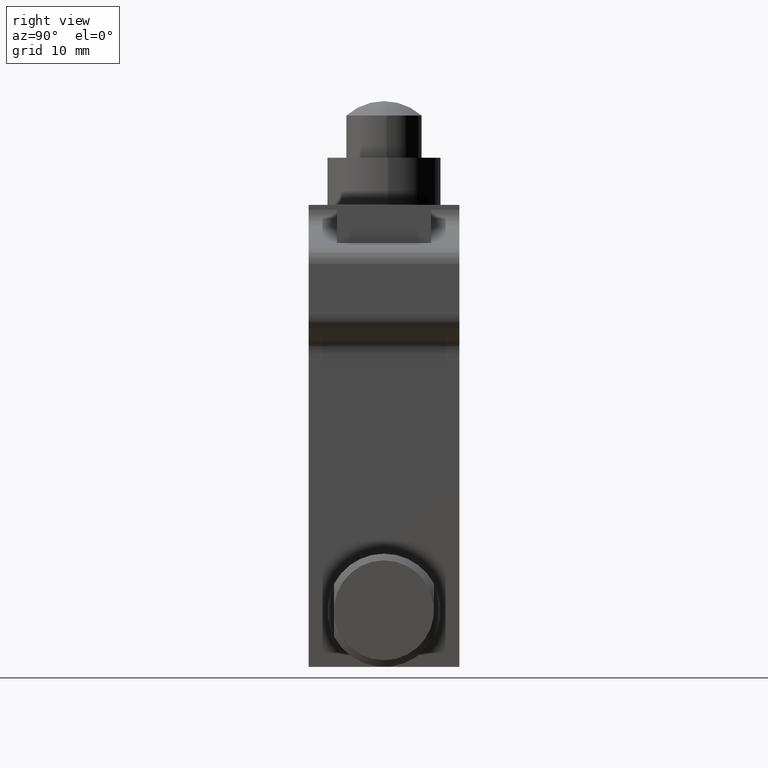
[diagram: clean part render]
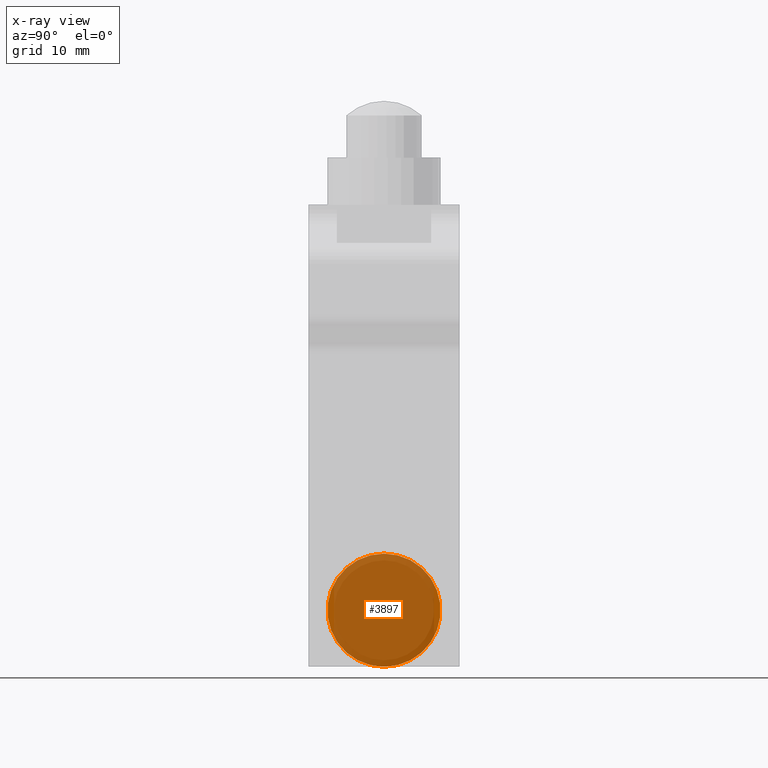
[diagram: x-ray — body ghosted, one internal face saturated and labeled with its STEP entity id]
A machine part, right view, then the same camera in x-ray: the body is ghosted and one INTERNAL B-rep face — a face not visible from any outside direction — is saturated and labeled: STEP entity #3897.
In plain terms, the highlighted planar face has unit normal (-1, -0, -0).
Its self-contained STEP definition (entity closure, byte-faithful):
#592 = CARTESIAN_POINT ( 'NONE',  ( 0.5905511811023620439, -0.3149606299212598381, -1.102362204724409711 ) ) ;
#825 = DIRECTION ( 'NONE',  ( -1.000000000000000000, -2.894103037646719272E-49, -4.120410279835029849E-32 ) ) ;
#915 = EDGE_LOOP ( 'NONE', ( #7029, #1708 ) ) ;
#1159 = CARTESIAN_POINT ( 'NONE',  ( 0.5905511811023620439, -0.3149606299212598381, -1.574803149606299302 ) ) ;
#1705 = EDGE_CURVE ( 'NONE', #5298, #5221, #6903, .T. ) ;
#1708 = ORIENTED_EDGE ( 'NONE', *, *, #6692, .T. ) ;
#2429 = CIRCLE ( 'NONE', #7123, 0.2362204724409448231 ) ;
#2938 = PLANE ( 'NONE',  #7032 ) ;
#3406 = FACE_OUTER_BOUND ( 'NONE', #915, .T. ) ;
#3476 = DIRECTION ( 'NONE',  ( -1.000000000000000000, -2.894103037646719652E-49, -4.120410279835029849E-32 ) ) ;
#3533 = CARTESIAN_POINT ( 'NONE',  ( 0.5905511811023620439, -0.2622634844473574756, -1.322805814800189328 ) ) ;
#3897 = ADVANCED_FACE ( 'NONE', ( #3406 ), #2938, .T. ) ;
#4559 = CARTESIAN_POINT ( 'NONE',  ( 0.5905511811023620439, -0.3149606299212598381, -1.338582677165354395 ) ) ;
#4853 = AXIS2_PLACEMENT_3D ( 'NONE', #6694, #5369, #5986 ) ;
#5221 = VERTEX_POINT ( 'NONE', #1159 ) ;
#5298 = VERTEX_POINT ( 'NONE', #592 ) ;
#5369 = DIRECTION ( 'NONE',  ( -1.000000000000000000, -2.894103037646719272E-49, -4.120410279835029849E-32 ) ) ;
#5805 = DIRECTION ( 'NONE',  ( 0.0000000000000000000, 0.0000000000000000000, 1.000000000000000000 ) ) ;
#5986 = DIRECTION ( 'NONE',  ( 0.0000000000000000000, 0.0000000000000000000, 1.000000000000000000 ) ) ;
#6692 = EDGE_CURVE ( 'NONE', #5221, #5298, #2429, .T. ) ;
#6694 = CARTESIAN_POINT ( 'NONE',  ( 0.5905511811023620439, -0.3149606299212598381, -1.338582677165354395 ) ) ;
#6903 = CIRCLE ( 'NONE', #4853, 0.2362204724409448231 ) ;
#7029 = ORIENTED_EDGE ( 'NONE', *, *, #1705, .T. ) ;
#7032 = AXIS2_PLACEMENT_3D ( 'NONE', #3533, #3476, #7846 ) ;
#7123 = AXIS2_PLACEMENT_3D ( 'NONE', #4559, #825, #5805 ) ;
#7846 = DIRECTION ( 'NONE',  ( 2.894103037646719652E-49, -1.000000000000000000, -1.294713684903035712E-80 ) ) ;